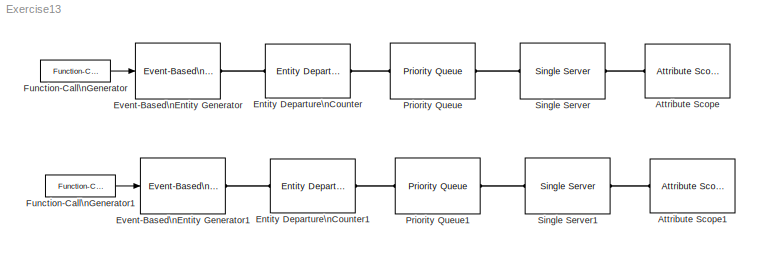
MODEL Exercise13
KIND model
BLOCK [Reference] Attribute Scope  REF=simeventssink1/Attribute Scope
  AttributeNameX = Count
  AttributeNameY = Count
  AxisGrid = on
  AxisLegend = off
  AxisZoom = off
  DataPointsLimit = 10000
  DataStoreOption = Limited
  EnableEntityOutport = on
  FigurePosition = des_figposition([5 25 25 25])
  FunctionWithSeparateData = off
  InputType = Attribute
  LineColors = b
  LineMarkers = .
  LineStyles = -
  NumInputs = 1
  OpenScopeAtSimStart = on
  PlotType = Stair
  Ports = [0, 0, 0, 0, 0, 1, 1]
  Priority = 1
  RTWMemSecDataConstants = Inherit from model
  RTWMemSecDataInternal = Inherit from model
  RTWMemSecDataParameters = Inherit from model
  RTWMemSecFuncExecute = Inherit from model
  RTWMemSecFuncInitTerm = Inherit from model
  ShowCountPlotted = off
  ShowPortLabels = FromPortIcon
  ShowToolbar = on
  SourceBlock = simeventssink1/Attribute Scope
  SourceType = Attribute Scope
  StatNumberArrived = Off
  SystemSampleTime = -1
  UserData = DataTag0
  UserDataPersistent = on
  XInputOptionEntity = Event time
  XInputOptionSignal = Event time
  XLabel = Time
  XLimitExceededOption = Stretch axis limits
  XMax = 10
  XMin = 0
  YLimitExceededOption = Stretch axis limits
  YMax = 10
  YMin = 0
BLOCK [Reference] Attribute Scope1  REF=simeventssink1/Attribute Scope
  AttributeNameX = Count
  AttributeNameY = Count
  AxisGrid = on
  AxisLegend = off
  AxisZoom = off
  DataPointsLimit = 10000
  DataStoreOption = Limited
  EnableEntityOutport = on
  FigurePosition = des_figposition([5 25 25 25])
  FunctionWithSeparateData = off
  InputType = Attribute
  LineColors = b
  LineMarkers = .
  LineStyles = -
  NumInputs = 1
  OpenScopeAtSimStart = on
  PlotType = Stair
  Ports = [0, 0, 0, 0, 0, 1, 1]
  Priority = 1
  RTWMemSecDataConstants = Inherit from model
  RTWMemSecDataInternal = Inherit from model
  RTWMemSecDataParameters = Inherit from model
  RTWMemSecFuncExecute = Inherit from model
  RTWMemSecFuncInitTerm = Inherit from model
  ShowCountPlotted = off
  ShowPortLabels = FromPortIcon
  ShowToolbar = on
  SourceBlock = simeventssink1/Attribute Scope
  SourceType = Attribute Scope
  StatNumberArrived = Off
  SystemSampleTime = -1
  UserData = DataTag1
  UserDataPersistent = on
  XInputOptionEntity = Event time
  XInputOptionSignal = Event time
  XLabel = Time
  XLimitExceededOption = Stretch axis limits
  XMax = 10
  XMin = 0
  YLimitExceededOption = Stretch axis limits
  YMax = 10
  YMin = 0
BLOCK [Reference] Entity Departure\nCounter  REF=simeventsprobes1/Entity Departure\nCounter
  CounterResetEdgeOption = Rising
  CounterResetTypeOption = Off
  CreateAttribute = on
  FunctionWithSeparateData = off
  NumberDepartedAttributeName = Count
  NumberDepartedToAttribute = On
  NumberDepartedToSignal = Off
  Ports = [0, 0, 0, 0, 0, 1, 1]
  Priority = 1
  PriorityEntityCounterReset = 1
  RTWMemSecDataConstants = Inherit from model
  RTWMemSecDataInternal = Inherit from model
  RTWMemSecDataParameters = Inherit from model
  RTWMemSecFuncExecute = Inherit from model
  RTWMemSecFuncInitTerm = Inherit from model
  ShowPortLabels = FromPortIcon
  SourceBlock = simeventsprobes1/Entity Departure\nCounter
  SourceType = Entity Departure Counter
  SpecifyEventPriority = off
  SystemSampleTime = -1
  UserData = DataTag2
  UserDataPersistent = on
BLOCK [Reference] Entity Departure\nCounter1  REF=simeventsprobes1/Entity Departure\nCounter
  CounterResetEdgeOption = Rising
  CounterResetTypeOption = Off
  CreateAttribute = on
  FunctionWithSeparateData = off
  NumberDepartedAttributeName = Count
  NumberDepartedToAttribute = On
  NumberDepartedToSignal = Off
  Ports = [0, 0, 0, 0, 0, 1, 1]
  Priority = 1
  PriorityEntityCounterReset = 1
  RTWMemSecDataConstants = Inherit from model
  RTWMemSecDataInternal = Inherit from model
  RTWMemSecDataParameters = Inherit from model
  RTWMemSecFuncExecute = Inherit from model
  RTWMemSecFuncInitTerm = Inherit from model
  ShowPortLabels = FromPortIcon
  SourceBlock = simeventsprobes1/Entity Departure\nCounter
  SourceType = Entity Departure Counter
  SpecifyEventPriority = off
  SystemSampleTime = -1
  UserData = DataTag3
  UserDataPersistent = on
BLOCK [Reference] Event-Based\nEntity Generator  REF=simeventsgenerators1/Entity Generators/Event-Based\nEntity Generator
  AllowBlocking = on
  DialogController = des_ddg_create
  DialogControllerArgs = DataTag5
  EntityType = Blank
  FunctionWithSeparateData = off
  GenerateEntitiesUpon = Function call from port fcn
  GenerateEntityAtSimulationStart = on
  Ports = [1, 0, 0, 0, 0, 0, 1]
  Priority = 1
  PriorityEntityGeneration = 300
  RTWMemSecDataConstants = Inherit from model
  RTWMemSecDataInternal = Inherit from model
  RTWMemSecDataParameters = Inherit from model
  RTWMemSecFuncExecute = Inherit from model
  RTWMemSecFuncInitTerm = Inherit from model
  ResponseDuringBlockage = Discard generated entities
  ShowPortLabels = FromPortIcon
  SignalEdgeType = Rising
  SourceBlock = simeventsgenerators1/Entity Generators/Event-Based\nEntity Generator
  SourceType = Event-Based Entity Generator
  SpecifyEventPriority = off
  StatAverageIntergenerationTime = Off
  StatNumberDeparted = Off
  StatPendingEntity = Off
  SystemSampleTime = -1
  UserData = DataTag4
  UserDataPersistent = on
BLOCK [Reference] Event-Based\nEntity Generator1  REF=simeventsgenerators1/Entity Generators/Event-Based\nEntity Generator
  AllowBlocking = on
  DialogController = des_ddg_create
  DialogControllerArgs = DataTag7
  EntityType = Blank
  FunctionWithSeparateData = off
  GenerateEntitiesUpon = Function call from port fcn
  GenerateEntityAtSimulationStart = on
  Ports = [1, 0, 0, 0, 0, 0, 1]
  Priority = 1
  PriorityEntityGeneration = 300
  RTWMemSecDataConstants = Inherit from model
  RTWMemSecDataInternal = Inherit from model
  RTWMemSecDataParameters = Inherit from model
  RTWMemSecFuncExecute = Inherit from model
  RTWMemSecFuncInitTerm = Inherit from model
  ResponseDuringBlockage = Discard generated entities
  ShowPortLabels = FromPortIcon
  SignalEdgeType = Rising
  SourceBlock = simeventsgenerators1/Entity Generators/Event-Based\nEntity Generator
  SourceType = Event-Based Entity Generator
  SpecifyEventPriority = off
  StatAverageIntergenerationTime = Off
  StatNumberDeparted = Off
  StatPendingEntity = Off
  SystemSampleTime = -1
  UserData = DataTag6
  UserDataPersistent = on
BLOCK [Reference] Function-Call\nGenerator  REF=simulink/Ports &\nSubsystems/Function-Call\nGenerator
  Ports = [0, 1]
  SourceBlock = simulink/Ports &\nSubsystems/Function-Call\nGenerator
  SourceType = Function-Call Generator
  numberOfIterations = 9
  sample_time = 10
BLOCK [Reference] Function-Call\nGenerator1  REF=simulink/Ports &\nSubsystems/Function-Call\nGenerator
  Ports = [0, 1]
  SourceBlock = simulink/Ports &\nSubsystems/Function-Call\nGenerator
  SourceType = Function-Call Generator
  numberOfIterations = 9
  sample_time = 10
BLOCK [Reference] Priority Queue  REF=simeventsqueue1/Priority Queue
  Capacity = 25
  EnableTOPort = off
  FunctionWithSeparateData = off
  Ports = [0, 0, 0, 0, 0, 1, 1]
  Priority = 1
  RTWMemSecDataConstants = Inherit from model
  RTWMemSecDataInternal = Inherit from model
  RTWMemSecDataParameters = Inherit from model
  RTWMemSecFuncExecute = Inherit from model
  RTWMemSecFuncInitTerm = Inherit from model
  ShowPortLabels = FromPortIcon
  SortingAttributeName = Count
  SortingDirection = Ascending
  SourceBlock = simeventsqueue1/Priority Queue
  SourceType = Priority Queue
  StatAverageQueueLength = Off
  StatAverageWait = Off
  StatNumberDeparted = Off
  StatNumberInBlock = Off
  StatNumberTimedout = Off
  StatPendingEntity = Off
  SystemSampleTime = -1
  UserData = DataTag8
  UserDataPersistent = on
BLOCK [Reference] Priority Queue1  REF=simeventsqueue1/Priority Queue
  Capacity = 25
  EnableTOPort = off
  FunctionWithSeparateData = off
  Ports = [0, 0, 0, 0, 0, 1, 1]
  Priority = 1
  RTWMemSecDataConstants = Inherit from model
  RTWMemSecDataInternal = Inherit from model
  RTWMemSecDataParameters = Inherit from model
  RTWMemSecFuncExecute = Inherit from model
  RTWMemSecFuncInitTerm = Inherit from model
  ShowPortLabels = FromPortIcon
  SortingAttributeName = Count
  SortingDirection = Descending
  SourceBlock = simeventsqueue1/Priority Queue
  SourceType = Priority Queue
  StatAverageQueueLength = Off
  StatAverageWait = Off
  StatNumberDeparted = Off
  StatNumberInBlock = Off
  StatNumberTimedout = Off
  StatPendingEntity = Off
  SystemSampleTime = -1
  UserData = DataTag9
  UserDataPersistent = on
BLOCK [Reference] Single Server  REF=simeventsserver1/Single Server
  AttributeName = ServiceTime
  CreateAttribute = on
  EnableTOPort = off
  FunctionWithSeparateData = off
  PermitPreemption = off
  Ports = [0, 0, 0, 0, 0, 1, 1]
  Priority = 1
  PriorityServiceCompletion = 500
  RTWMemSecDataConstants = Inherit from model
  RTWMemSecDataInternal = Inherit from model
  RTWMemSecDataParameters = Inherit from model
  RTWMemSecFuncExecute = Inherit from model
  RTWMemSecFuncInitTerm = Inherit from model
  ResidualAttributeName = ResidualServiceTime
  ServiceTime = 1
  ServiceTimeFrom = Dialog
  ShowPortLabels = FromPortIcon
  SortingAttributeName = PriorityAttributeName
  SortingDirection = Ascending
  SourceBlock = simeventsserver1/Single Server
  SourceType = Single Server
  StatAverageWait = Off
  StatNumberDeparted = Off
  StatNumberInBlock = Off
  StatNumberPreempted = Off
  StatNumberTimedout = Off
  StatPendingEntity = Off
  StatUtilization = Off
  SystemSampleTime = -1
  UserData = DataTag10
  UserDataPersistent = on
  WriteToAttribute = off
BLOCK [Reference] Single Server1  REF=simeventsserver1/Single Server
  AttributeName = ServiceTime
  CreateAttribute = on
  EnableTOPort = off
  FunctionWithSeparateData = off
  PermitPreemption = off
  Ports = [0, 0, 0, 0, 0, 1, 1]
  Priority = 1
  PriorityServiceCompletion = 500
  RTWMemSecDataConstants = Inherit from model
  RTWMemSecDataInternal = Inherit from model
  RTWMemSecDataParameters = Inherit from model
  RTWMemSecFuncExecute = Inherit from model
  RTWMemSecFuncInitTerm = Inherit from model
  ResidualAttributeName = ResidualServiceTime
  ServiceTime = 1
  ServiceTimeFrom = Dialog
  ShowPortLabels = FromPortIcon
  SortingAttributeName = PriorityAttributeName
  SortingDirection = Ascending
  SourceBlock = simeventsserver1/Single Server
  SourceType = Single Server
  StatAverageWait = Off
  StatNumberDeparted = Off
  StatNumberInBlock = Off
  StatNumberPreempted = Off
  StatNumberTimedout = Off
  StatPendingEntity = Off
  StatUtilization = Off
  SystemSampleTime = -1
  UserData = DataTag11
  UserDataPersistent = on
  WriteToAttribute = off
LINE Function-Call\nGenerator1:1 -> Event-Based\nEntity Generator1:1
LINE Function-Call\nGenerator:1 -> Event-Based\nEntity Generator:1
PLINE Attribute Scope1:LConn1 -- Single Server1:RConn1
PLINE Attribute Scope:LConn1 -- Single Server:RConn1
PLINE Entity Departure\nCounter1:LConn1 -- Event-Based\nEntity Generator1:RConn1
PLINE Entity Departure\nCounter1:RConn1 -- Priority Queue1:LConn1
PLINE Entity Departure\nCounter:LConn1 -- Event-Based\nEntity Generator:RConn1
PLINE Entity Departure\nCounter:RConn1 -- Priority Queue:LConn1
PLINE Priority Queue1:RConn1 -- Single Server1:LConn1
PLINE Priority Queue:RConn1 -- Single Server:LConn1
